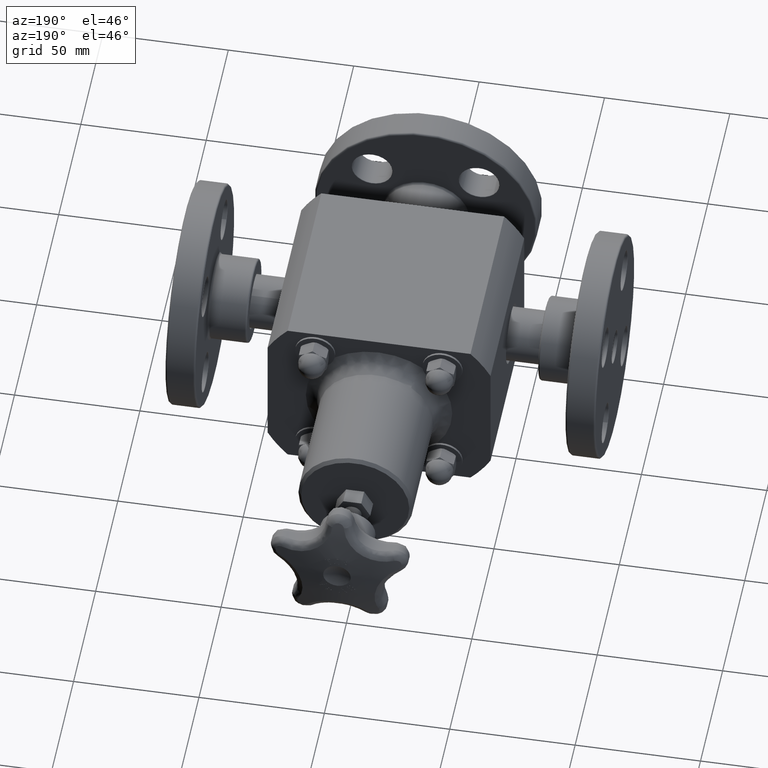
[diagram: clean part render]
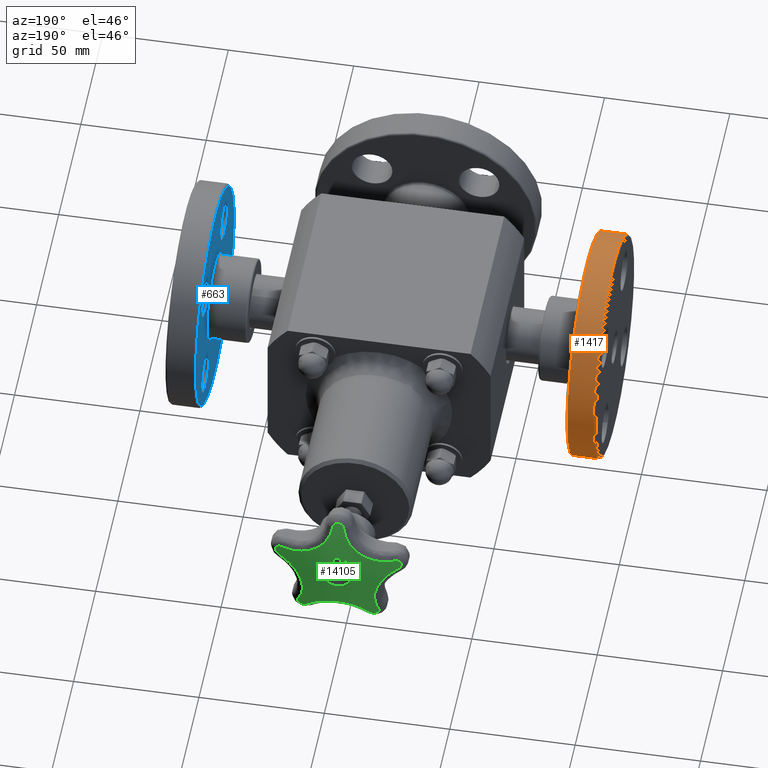
[diagram: same view with three faces highlighted in distinct colors, each labeled with its STEP entity id]
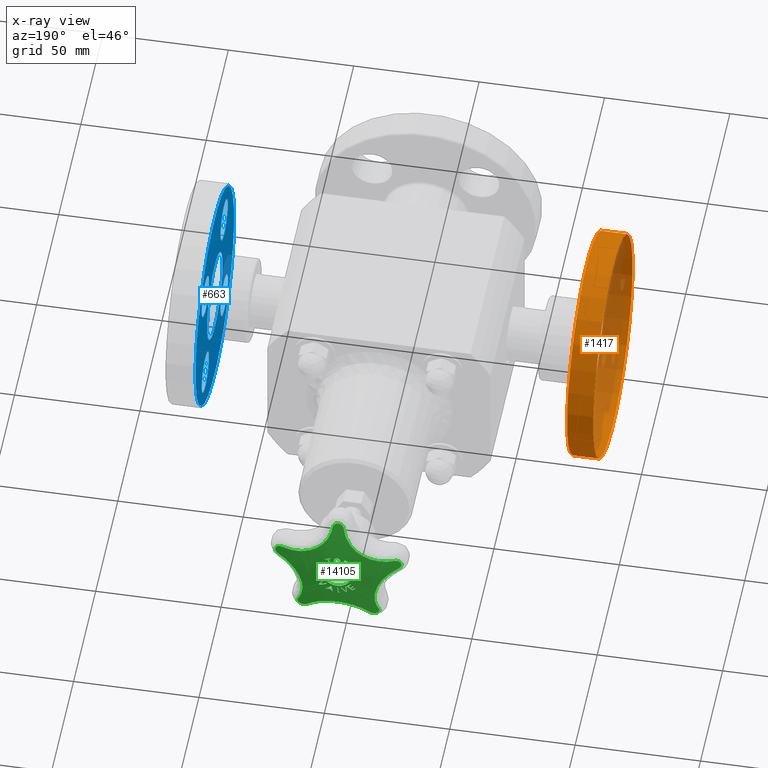
[diagram: x-ray of the same camera — body ghosted, the three highlighted faces saturated]
A machine part, auxiliary view with three faces highlighted in distinct colors.
The next image is the same camera in x-ray (body ghosted, the three faces saturated) — at least one of them is partly hidden behind the body in this view.
Their STEP definitions:

[orange] entity #1417 — the highlighted cylindrical surface (bore or boss wall) has radius 44.45 mm, axis along (1, -0, 0).
#1386=CARTESIAN_POINT('',(-3.345000000000006,-0.087436867076342,1.237436867076622));
#1387=VERTEX_POINT('',#1386);
#1388=CARTESIAN_POINT('',(-3.345000000000002,1.149999999999986,3.335837E-014));
#1389=DIRECTION('',(-1.000000000000000,2.120044E-015,-2.120044E-015));
#1390=DIRECTION('',(2.998195E-015,0.707106781186473,-0.707106781186622));
#1391=AXIS2_PLACEMENT_3D('',#1388,#1389,#1390);
#1392=CIRCLE('',#1391,1.750000000000000);
#1393=EDGE_CURVE('',#1387,#1387,#1392,.T.);
#1398=CARTESIAN_POINT('',(-3.140000000000002,1.149999999999986,3.377727E-014));
#1399=DIRECTION('',(1.0,-2.196697E-015,2.043391E-015));
#1400=DIRECTION('',(-2.998195E-015,-0.707106781186473,0.707106781186622));
#1401=AXIS2_PLACEMENT_3D('',#1398,#1399,#1400);
#1402=CYLINDRICAL_SURFACE('',#1401,1.750000000000000);
#1403=CARTESIAN_POINT('',(-2.935000000000007,-0.087436867076343,1.237436867076623));
#1404=VERTEX_POINT('',#1403);
#1405=CARTESIAN_POINT('',(-2.935000000000002,1.149999999999985,3.419616E-014));
#1406=DIRECTION('',(1.000000000000000,-2.120044E-015,2.120044E-015));
#1407=DIRECTION('',(2.998195E-015,0.707106781186473,-0.707106781186622));
#1408=AXIS2_PLACEMENT_3D('',#1405,#1406,#1407);
#1409=CIRCLE('',#1408,1.750000000000000);
#1410=EDGE_CURVE('',#1404,#1404,#1409,.T.);
#1411=ORIENTED_EDGE('',*,*,#1410,.F.);
#1412=EDGE_LOOP('',(#1411));
#1413=FACE_OUTER_BOUND('',#1412,.T.);
#1414=ORIENTED_EDGE('',*,*,#1393,.F.);
#1415=EDGE_LOOP('',(#1414));
#1416=FACE_BOUND('',#1415,.T.);
#1417=ADVANCED_FACE('',(#1413,#1416),#1402,.T.);

[blue] entity #663 — the highlighted planar face has unit normal (-1, 0, 0).
#585=CARTESIAN_POINT('',(2.905000000000005,0.661919544285954,-0.488080455714045));
#586=VERTEX_POINT('',#585);
#587=CARTESIAN_POINT('',(2.905000000000003,1.149999999999969,-3.057818E-014));
#588=DIRECTION('',(-1.0,-2.236787E-015,-2.236787E-015));
#589=DIRECTION('',(-3.163295E-015,0.707106781186547,0.707106781186548));
#590=AXIS2_PLACEMENT_3D('',#587,#588,#589);
#591=CIRCLE('',#590,0.690250000000000);
#592=EDGE_CURVE('',#586,#586,#591,.T.);
#600=CARTESIAN_POINT('',(2.905000000000007,0.297847940322531,-0.852152059677469));
#601=DIRECTION('',(-1.0,0.0,0.0));
#602=DIRECTION('',(0.0,0.707106781186548,-0.707106781186547));
#603=AXIS2_PLACEMENT_3D('',#600,#601,#602);
#604=PLANE('',#603);
#605=CARTESIAN_POINT('',(2.905000000000008,-0.066223663640893,-1.216223663640893));
#606=VERTEX_POINT('',#605);
#607=CARTESIAN_POINT('',(2.905000000000003,1.149999999999969,-3.057818E-014));
#608=DIRECTION('',(1.000000000000000,2.236787E-015,2.236787E-015));
#609=DIRECTION('',(-3.163295E-015,0.707106781186547,0.707106781186548));
#610=AXIS2_PLACEMENT_3D('',#607,#608,#609);
#611=CIRCLE('',#610,1.720000000000000);
#612=EDGE_CURVE('',#606,#606,#611,.T.);
#613=ORIENTED_EDGE('',*,*,#612,.F.);
#614=EDGE_LOOP('',(#613));
#615=FACE_OUTER_BOUND('',#614,.T.);
#616=CARTESIAN_POINT('',(2.905000000000002,2.219499006544623,-0.609879598773427));
#617=VERTEX_POINT('',#616);
#618=CARTESIAN_POINT('',(2.905000000000003,1.989689302658994,-0.839689302659055));
#619=DIRECTION('',(-1.0,-2.236787E-015,-2.236787E-015));
#620=DIRECTION('',(3.163295E-015,-0.707106781186547,-0.707106781186548));
#621=AXIS2_PLACEMENT_3D('',#618,#619,#620);
#622=CIRCLE('',#621,0.325000000000000);
#623=EDGE_CURVE('',#617,#617,#622,.T.);
#624=ORIENTED_EDGE('',*,*,#623,.F.);
#625=EDGE_LOOP('',(#624));
#626=FACE_BOUND('',#625,.T.);
#627=CARTESIAN_POINT('',(2.905000000000007,0.540120401226572,-1.069499006544684));
#628=VERTEX_POINT('',#627);
#629=CARTESIAN_POINT('',(2.905000000000007,0.310310697340944,-0.839689302659056));
#630=DIRECTION('',(-1.0,-7.093175E-017,7.093175E-017));
#631=DIRECTION('',(1.003126E-016,-0.707106781186548,0.707106781186547));
#632=AXIS2_PLACEMENT_3D('',#629,#630,#631);
#633=CIRCLE('',#632,0.325000000000000);
#634=EDGE_CURVE('',#628,#628,#633,.T.);
#635=ORIENTED_EDGE('',*,*,#634,.F.);
#636=EDGE_LOOP('',(#635));
#637=FACE_BOUND('',#636,.T.);
#638=CARTESIAN_POINT('',(2.905000000000004,0.080500993455315,0.609879598773366));
#639=VERTEX_POINT('',#638);
#640=CARTESIAN_POINT('',(2.905000000000003,0.310310697340943,0.839689302658994));
#641=DIRECTION('',(-1.0,-2.236787E-015,-2.236787E-015));
#642=DIRECTION('',(-3.163295E-015,0.707106781186547,0.707106781186548));
#643=AXIS2_PLACEMENT_3D('',#640,#641,#642);
#644=CIRCLE('',#643,0.325000000000000);
#645=EDGE_CURVE('',#639,#639,#644,.T.);
#646=ORIENTED_EDGE('',*,*,#645,.F.);
#647=EDGE_LOOP('',(#646));
#648=FACE_BOUND('',#647,.T.);
#649=CARTESIAN_POINT('',(2.904999999999999,1.759879598773366,1.069499006544623));
#650=VERTEX_POINT('',#649);
#651=CARTESIAN_POINT('',(2.904999999999999,1.989689302658993,0.839689302658995));
#652=DIRECTION('',(-1.0,-7.093175E-017,7.093175E-017));
#653=DIRECTION('',(-1.003126E-016,0.707106781186548,-0.707106781186547));
#654=AXIS2_PLACEMENT_3D('',#651,#652,#653);
#655=CIRCLE('',#654,0.325000000000000);
#656=EDGE_CURVE('',#650,#650,#655,.T.);
#657=ORIENTED_EDGE('',*,*,#656,.F.);
#658=EDGE_LOOP('',(#657));
#659=FACE_BOUND('',#658,.T.);
#660=ORIENTED_EDGE('',*,*,#592,.F.);
#661=EDGE_LOOP('',(#660));
#662=FACE_BOUND('',#661,.T.);
#663=ADVANCED_FACE('',(#615,#626,#637,#648,#659,#662),#604,.T.);

[green] entity #14105 — the highlighted spherical surface has radius 101.6 mm.
#10915=CARTESIAN_POINT('',(0.085862900185206,6.740578033837451,-0.334336098257463));
#10916=VERTEX_POINT('',#10915);
#10923=CARTESIAN_POINT('',(0.080862571524469,6.738070388788941,-0.364135061299997));
#10924=VERTEX_POINT('',#10923);
#10925=CARTESIAN_POINT('',(0.138077283113866,2.755500000000001,-0.023169658459773));
#10926=DIRECTION('',(0.986211736099962,8.119753E-016,-0.165488403154721));
#10927=DIRECTION('',(0.165488403154721,1.362512E-016,0.986211736099962));
#10928=AXIS2_PLACEMENT_3D('',#10925,#10926,#10927);
#10929=CIRCLE('',#10928,3.997548977913186);
#10930=EDGE_CURVE('',#10924,#10916,#10929,.T.);
#10948=CARTESIAN_POINT('',(0.066931145986270,6.738560100352849,-0.361597094393903));
#10949=VERTEX_POINT('',#10948);
#10950=CARTESIAN_POINT('',(-0.061608234058830,2.755500000000001,-0.338180345563004));
#10951=DIRECTION('',(-0.179225881333302,0.0,-0.983807950496590));
#10952=DIRECTION('',(0.0,-1.0,0.0));
#10953=AXIS2_PLACEMENT_3D('',#10950,#10951,#10952);
#10954=CIRCLE('',#10953,3.985202438944732);
#10955=EDGE_CURVE('',#10949,#10924,#10954,.T.);
#10973=CARTESIAN_POINT('',(0.086359266902225,6.747345606544359,-0.240230577846814));
#10974=VERTEX_POINT('',#10973);
#10975=CARTESIAN_POINT('',(0.121696449326064,2.755500000000001,-0.019480935927100));
#10976=DIRECTION('',(-0.987428598717144,-8.129772E-016,0.158065690254078));
#10977=DIRECTION('',(-0.158065690254078,-1.301398E-016,-0.987428598717144));
#10978=AXIS2_PLACEMENT_3D('',#10975,#10976,#10977);
#10979=CIRCLE('',#10978,3.998100857576862);
#10980=EDGE_CURVE('',#10974,#10949,#10979,.T.);
#10998=CARTESIAN_POINT('',(0.178491128782155,6.738560100243761,-0.321516958794137));
#10999=VERTEX_POINT('',#10998);
#11000=CARTESIAN_POINT('',(-0.081379549747353,2.755500000000001,-0.092237461550080));
#11001=DIRECTION('',(0.661592173204071,0.0,0.749863851879202));
#11002=DIRECTION('',(0.0,1.0,0.0));
#11003=AXIS2_PLACEMENT_3D('',#11000,#11001,#11002);
#11004=CIRCLE('',#11003,3.998108255108873);
#11005=EDGE_CURVE('',#10999,#10974,#11004,.T.);
#11041=CARTESIAN_POINT('',(0.169360113250162,6.738070388702395,-0.332340564889026));
#11042=VERTEX_POINT('',#11041);
#11043=CARTESIAN_POINT('',(0.262739148876331,2.755500000000001,-0.221652121134104));
#11044=DIRECTION('',(0.764340282334966,0.0,-0.644813099122609));
#11045=DIRECTION('',(0.0,-1.0,0.0));
#11046=AXIS2_PLACEMENT_3D('',#11043,#11044,#11045);
#11047=CIRCLE('',#11046,3.985202438627741);
#11048=EDGE_CURVE('',#11042,#10999,#11047,.T.);
#11066=CARTESIAN_POINT('',(0.146539084429399,6.740578033778149,-0.312536976105991));
#11067=VERTEX_POINT('',#11066);
#11068=CARTESIAN_POINT('',(-0.091762441742964,2.755500000000001,-0.105744133077217));
#11069=DIRECTION('',(-0.655409775395539,0.0,-0.755273477831686));
#11070=DIRECTION('',(0.0,-1.0,0.0));
#11071=AXIS2_PLACEMENT_3D('',#11068,#11069,#11070);
#11072=CIRCLE('',#11071,3.997548978137118);
#11073=EDGE_CURVE('',#11067,#11042,#11072,.T.);
#11091=CARTESIAN_POINT('',(0.116200988857741,2.755500000000001,-0.323436538421051));
#11092=DIRECTION('',(0.338111065893150,0.0,-0.941106214579735));
#11093=DIRECTION('',(0.0,-1.0,0.0));
#11094=AXIS2_PLACEMENT_3D('',#11091,#11092,#11093);
#11095=CIRCLE('',#11094,3.985208418113498);
#11096=EDGE_CURVE('',#10916,#11067,#11095,.T.);
#11126=CARTESIAN_POINT('',(0.037834369669128,6.746204436490726,0.269901206082852));
#11127=VERTEX_POINT('',#11126);
#11134=CARTESIAN_POINT('',(-0.000813251585515,6.747463335806677,0.253432563411025));
#11135=VERTEX_POINT('',#11134);
#11136=CARTESIAN_POINT('',(-0.000813251585515,6.747463335806679,0.253432563411025));
#11137=CARTESIAN_POINT('',(0.004822604549688,6.747463267161418,0.253451729844247));
#11138=CARTESIAN_POINT('',(0.010434056143413,6.747408968571552,0.254137147028970));
#11139=CARTESIAN_POINT('',(0.019829419967583,6.747191776701516,0.256945437338924));
#11140=CARTESIAN_POINT('',(0.023603879105446,6.747063271092423,0.258616838560288));
#11141=CARTESIAN_POINT('',(0.031162797321002,6.746707503911848,0.263275608997045));
#11142=CARTESIAN_POINT('',(0.034718544485051,6.746475224151670,0.266334166676060));
#11143=CARTESIAN_POINT('',(0.037834369669128,6.746204436490726,0.269901206082852));
#11144=B_SPLINE_CURVE_WITH_KNOTS('',3,(#11136,#11137,#11138,#11139,#11140,#11141,#11142,#11143),.UNSPECIFIED.,.F.,.U.,(4,2,2,4),(0.0,0.042945472093289,0.074729953679080,0.111130521126663),.UNSPECIFIED.);
#11145=EDGE_CURVE('',#11135,#11127,#11144,.T.);
#11178=CARTESIAN_POINT('',(0.051972176469604,6.742648590963245,0.316140801626154));
#11179=VERTEX_POINT('',#11178);
#11186=CARTESIAN_POINT('',(0.037834369669128,6.746204436490726,0.269901206082852));
#11187=CARTESIAN_POINT('',(0.041442739555286,6.745886429832900,0.274097371770596));
#11188=CARTESIAN_POINT('',(0.044216393332112,6.745526143654533,0.278867364485765));
#11189=CARTESIAN_POINT('',(0.051175872144368,6.744247534047899,0.295695352673442));
#11190=CARTESIAN_POINT('',(0.052000310715347,6.743304176149835,0.307867975918427));
#11191=CARTESIAN_POINT('',(0.051972176469604,6.742648590963245,0.316140801626154));
#11192=B_SPLINE_CURVE_WITH_KNOTS('',3,(#11186,#11187,#11188,#11189,#11190,#11191),.UNSPECIFIED.,.F.,.U.,(4,2,4),(0.0,0.042240697270331,0.139117363804144),.UNSPECIFIED.);
#11193=EDGE_CURVE('',#11127,#11179,#11192,.T.);
#11219=CARTESIAN_POINT('',(0.037422621985942,6.738875481075144,0.362380082417698));
#11220=VERTEX_POINT('',#11219);
#11227=CARTESIAN_POINT('',(0.051972176469604,6.742648590963245,0.316140801626154));
#11228=CARTESIAN_POINT('',(0.051955724861652,6.742265235014527,0.320978368143260));
#11229=CARTESIAN_POINT('',(0.051649887753161,6.741873160763518,0.325860197870603));
#11230=CARTESIAN_POINT('',(0.050134657362978,6.741046460787356,0.336059631335726));
#11231=CARTESIAN_POINT('',(0.048942330808369,6.740679768741241,0.340537076610656));
#11232=CARTESIAN_POINT('',(0.045132529339027,6.739814489793274,0.351068251626343));
#11233=CARTESIAN_POINT('',(0.041865078415880,6.739314249290123,0.357098260899482));
#11234=CARTESIAN_POINT('',(0.037422621985942,6.738875481075144,0.362380082417698));
#11235=B_SPLINE_CURVE_WITH_KNOTS('',3,(#11227,#11228,#11229,#11230,#11231,#11232,#11233,#11234),.UNSPECIFIED.,.F.,.U.,(4,2,2,4),(0.0,0.036978033263811,0.078812994269673,0.145814753845857),.UNSPECIFIED.);
#11236=EDGE_CURVE('',#11179,#11220,#11235,.T.);
#11264=CARTESIAN_POINT('',(-0.001238542349027,6.737552846207735,0.378488567887761));
#11265=VERTEX_POINT('',#11264);
#11272=CARTESIAN_POINT('',(0.037422621985942,6.738875481075144,0.362380082417698));
#11273=CARTESIAN_POINT('',(0.034954443929445,6.738644692501275,0.365171856276012));
#11274=CARTESIAN_POINT('',(0.032197988751056,6.738440415363390,0.367645041378230));
#11275=CARTESIAN_POINT('',(0.025433171661511,6.738054380883790,0.372335971569166));
#11276=CARTESIAN_POINT('',(0.021382576080445,6.737892027163674,0.374321631798851));
#11277=CARTESIAN_POINT('',(0.014161922593867,6.737697132621298,0.376716303028089));
#11278=CARTESIAN_POINT('',(0.011126297743761,6.737640822220747,0.377412789087581));
#11279=CARTESIAN_POINT('',(0.004967186895544,6.737568654773592,0.378304358121796));
#11280=CARTESIAN_POINT('',(0.001864839243264,6.737552808314180,0.378499121875411));
#11281=CARTESIAN_POINT('',(-0.001238542349027,6.737552846207737,0.378488567887761));
#11282=B_SPLINE_CURVE_WITH_KNOTS('',3,(#11272,#11273,#11274,#11275,#11276,#11277,#11278,#11279,#11280,#11281),.UNSPECIFIED.,.F.,.U.,(4,2,2,2,4),(0.0,0.028449418287417,0.062797366334246,0.086669104210055,0.110412733579470),.UNSPECIFIED.);
#11283=EDGE_CURVE('',#11220,#11265,#11282,.T.);
#11469=CARTESIAN_POINT('',(-0.039886494311884,6.738875481072100,0.362117169387378));
#11470=VERTEX_POINT('',#11469);
#11477=CARTESIAN_POINT('',(-0.001238542349027,6.737552846207735,0.378488567887761));
#11478=CARTESIAN_POINT('',(-0.006745334190300,6.737552913447912,0.378469840376703));
#11479=CARTESIAN_POINT('',(-0.012222719771295,6.737603190919958,0.377803010782852));
#11480=CARTESIAN_POINT('',(-0.022169110236768,6.737836259202796,0.374873454632416));
#11481=CARTESIAN_POINT('',(-0.025880772573743,6.737983982792516,0.373045650941542));
#11482=CARTESIAN_POINT('',(-0.032976239086439,6.738326456239562,0.368822005397032));
#11483=CARTESIAN_POINT('',(-0.036677483482779,6.738576120274296,0.365763676003977));
#11484=CARTESIAN_POINT('',(-0.039886494311884,6.738875481072101,0.362117169387378));
#11485=B_SPLINE_CURVE_WITH_KNOTS('',3,(#11477,#11478,#11479,#11480,#11481,#11482,#11483,#11484),.UNSPECIFIED.,.F.,.U.,(4,2,2,4),(0.0,0.041961996486355,0.079020325656231,0.132098515306939),.UNSPECIFIED.);
#11486=EDGE_CURVE('',#11265,#11470,#11485,.T.);
#11512=CARTESIAN_POINT('',(-0.054121214575590,6.742648590959070,0.315779998964418));
#11513=VERTEX_POINT('',#11512);
#11520=CARTESIAN_POINT('',(-0.039886494311884,6.738875481072101,0.362117169387378));
#11521=CARTESIAN_POINT('',(-0.043384531614645,6.739215540252462,0.357991135129825));
#11522=CARTESIAN_POINT('',(-0.046110522559893,6.739601304155914,0.353327026506887));
#11523=CARTESIAN_POINT('',(-0.049655140330855,6.740287322165352,0.344989572698872));
#11524=CARTESIAN_POINT('',(-0.051408401706373,6.740680648419754,0.340203251638014));
#11525=CARTESIAN_POINT('',(-0.053714336300570,6.741694761028935,0.327721858865082));
#11526=CARTESIAN_POINT('',(-0.054141415064123,6.742177878462817,0.321719917253610));
#11527=CARTESIAN_POINT('',(-0.054121214575590,6.742648590959071,0.315779998964418));
#11528=B_SPLINE_CURVE_WITH_KNOTS('',3,(#11520,#11521,#11522,#11523,#11524,#11525,#11526,#11527),.UNSPECIFIED.,.F.,.U.,(4,2,2,4),(0.0,0.041300163745689,0.069239721804254,0.093823977580811),.UNSPECIFIED.);
#11529=EDGE_CURVE('',#11470,#11513,#11528,.T.);
#11555=CARTESIAN_POINT('',(-0.039571990800143,6.746205379604828,0.269637962344317));
#11556=VERTEX_POINT('',#11555);
#11563=CARTESIAN_POINT('',(-0.054121214575590,6.742648590959070,0.315779998964418));
#11564=CARTESIAN_POINT('',(-0.054104973183968,6.743027048439478,0.311004246190808));
#11565=CARTESIAN_POINT('',(-0.053791585087134,6.743402200783878,0.306211457940531));
#11566=CARTESIAN_POINT('',(-0.052375519715099,6.744143410979321,0.296655576028873));
#11567=CARTESIAN_POINT('',(-0.051258684496634,6.744507467278868,0.291916990166382));
#11568=CARTESIAN_POINT('',(-0.047377403862627,6.745352193214817,0.280860112488070));
#11569=CARTESIAN_POINT('',(-0.044132654634135,6.745811607413359,0.274796561836271));
#11570=CARTESIAN_POINT('',(-0.039571990800143,6.746205379604830,0.269637962344317));
#11571=B_SPLINE_CURVE_WITH_KNOTS('',3,(#11563,#11564,#11565,#11566,#11567,#11568,#11569,#11570),.UNSPECIFIED.,.F.,.U.,(4,2,2,4),(0.0,0.036505533163791,0.073822024429602,0.126837533468264),.UNSPECIFIED.);
#11572=EDGE_CURVE('',#11513,#11556,#11571,.T.);
#11599=CARTESIAN_POINT('',(-0.039571990800143,6.746205379604827,0.269637962344317));
#11600=CARTESIAN_POINT('',(-0.036994618978139,6.746426649193219,0.266741374653484));
#11601=CARTESIAN_POINT('',(-0.034125944551204,6.746624226597592,0.264155087526020));
#11602=CARTESIAN_POINT('',(-0.028127958870899,6.746941902899274,0.260022999604723));
#11603=CARTESIAN_POINT('',(-0.024119800176992,6.747119835051822,0.257727462092389));
#11604=CARTESIAN_POINT('',(-0.015614631027449,6.747330482346447,0.255058899401250));
#11605=CARTESIAN_POINT('',(-0.012615830697538,6.747382732516451,0.254406267976287));
#11606=CARTESIAN_POINT('',(-0.006666959610793,6.747448427235688,0.253597873925736));
#11607=CARTESIAN_POINT('',(-0.003741704705229,6.747463371475512,0.253422604320576));
#11608=CARTESIAN_POINT('',(-0.000813251586151,6.747463335806678,0.253432563411023));
#11609=B_SPLINE_CURVE_WITH_KNOTS('',3,(#11599,#11600,#11601,#11602,#11603,#11604,#11605,#11606,#11607,#11608),.UNSPECIFIED.,.F.,.U.,(4,2,2,2,4),(0.0,0.029592715149351,0.055552496815722,0.069221283901438,0.082236559754027),.UNSPECIFIED.);
#11610=EDGE_CURVE('',#11556,#11135,#11609,.T.);
#11884=CARTESIAN_POINT('',(-0.247118300170069,6.742930202010450,-0.198325313099392));
#11885=VERTEX_POINT('',#11884);
#11892=CARTESIAN_POINT('',(-0.207827658530658,6.743059962457522,-0.237008882018032));
#11893=VERTEX_POINT('',#11892);
#11894=CARTESIAN_POINT('',(-0.220785948703936,2.755500000000000,-0.224250808083116));
#11895=DIRECTION('',(0.701580297701931,0.0,0.712590405405847));
#11896=DIRECTION('',(0.0,1.0,0.0));
#11897=AXIS2_PLACEMENT_3D('',#11894,#11895,#11896);
#11898=CIRCLE('',#11897,3.987601426914302);
#11899=EDGE_CURVE('',#11893,#11885,#11898,.T.);
#11917=CARTESIAN_POINT('',(-0.176580613442938,6.746324840990900,-0.205271467783727));
#11918=VERTEX_POINT('',#11917);
#11919=CARTESIAN_POINT('',(0.012958290173280,2.755500000000001,-0.012758073934916));
#11920=DIRECTION('',(-0.712590405405847,0.0,0.701580297701931));
#11921=DIRECTION('',(0.0,1.0,0.0));
#11922=AXIS2_PLACEMENT_3D('',#11919,#11920,#11921);
#11923=CIRCLE('',#11922,3.999958664069575);
#11924=EDGE_CURVE('',#11918,#11893,#11923,.T.);
#11942=CARTESIAN_POINT('',(-0.218712377317299,6.746156275729470,-0.163790674304833));
#11943=VERTEX_POINT('',#11942);
#11944=CARTESIAN_POINT('',(-0.189538903616217,2.755500000000001,-0.192513393848812));
#11945=DIRECTION('',(-0.701580297701931,0.0,-0.712590405405848));
#11946=DIRECTION('',(0.0,-1.0,0.0));
#11947=AXIS2_PLACEMENT_3D('',#11944,#11945,#11946);
#11948=CIRCLE('',#11947,3.990866271526118);
#11949=EDGE_CURVE('',#11943,#11918,#11948,.T.);
#11967=CARTESIAN_POINT('',(-0.208751528883222,6.747092069880931,-0.153673507321845));
#11968=VERTEX_POINT('',#11967);
#11969=CARTESIAN_POINT('',(-0.029173473701080,2.755500000000001,0.028722719543979));
#11970=DIRECTION('',(-0.712590405405848,0.0,0.701580297701931));
#11971=DIRECTION('',(0.0,1.0,0.0));
#11972=AXIS2_PLACEMENT_3D('',#11969,#11970,#11971);
#11973=CIRCLE('',#11972,3.999790483739644);
#11974=EDGE_CURVE('',#11968,#11943,#11973,.T.);
#11992=CARTESIAN_POINT('',(-0.155255276069067,6.747156082813491,-0.206343199041757));
#11993=VERTEX_POINT('',#11992);
#11994=CARTESIAN_POINT('',(-0.179578055182140,2.755500000000001,-0.182396226865824));
#11995=DIRECTION('',(0.701580297701931,0.0,0.712590405405847));
#11996=DIRECTION('',(0.0,1.0,0.0));
#11997=AXIS2_PLACEMENT_3D('',#11994,#11995,#11996);
#11998=CIRCLE('',#11997,3.991802016448476);
#11999=EDGE_CURVE('',#11993,#11968,#11998,.T.);
#12017=CARTESIAN_POINT('',(-0.239444912833796,6.737646073155509,-0.291854048747284));
#12018=VERTEX_POINT('',#12017);
#12019=CARTESIAN_POINT('',(0.024322779113075,2.755500000000001,-0.023946972175933));
#12020=DIRECTION('',(0.712590405405848,0.0,-0.701580297701931));
#12021=DIRECTION('',(0.0,-1.0,0.0));
#12022=AXIS2_PLACEMENT_3D('',#12019,#12020,#12021);
#12023=CIRCLE('',#12022,3.999854365466301);
#12024=EDGE_CURVE('',#12018,#11993,#12023,.T.);
#12042=CARTESIAN_POINT('',(-0.292941165647951,6.737581907347241,-0.239184357027373));
#12043=VERTEX_POINT('',#12042);
#12044=CARTESIAN_POINT('',(-0.263767691946869,2.755500000000000,-0.267907076571351));
#12045=DIRECTION('',(-0.701580297701931,0.0,-0.712590405405847));
#12046=DIRECTION('',(0.0,-1.0,0.0));
#12047=AXIS2_PLACEMENT_3D('',#12044,#12045,#12046);
#12048=CIRCLE('',#12047,3.982292355290859);
#12049=EDGE_CURVE('',#12043,#12018,#12048,.T.);
#12067=CARTESIAN_POINT('',(-0.282980317213874,6.738896837187417,-0.229067190044385));
#12068=VERTEX_POINT('',#12067);
#12069=CARTESIAN_POINT('',(-0.029173473701080,2.755500000000001,0.028722719543979));
#12070=DIRECTION('',(-0.712590405405848,0.0,0.701580297701931));
#12071=DIRECTION('',(0.0,1.0,0.0));
#12072=AXIS2_PLACEMENT_3D('',#12069,#12070,#12071);
#12073=CIRCLE('',#12072,3.999790483739644);
#12074=EDGE_CURVE('',#12068,#12043,#12073,.T.);
#12092=CARTESIAN_POINT('',(-0.240848553339514,6.739065709633239,-0.270547983523279));
#12093=VERTEX_POINT('',#12092);
#12094=CARTESIAN_POINT('',(-0.253806843512793,2.755500000000000,-0.257789909588364));
#12095=DIRECTION('',(0.701580297701931,0.0,0.712590405405847));
#12096=DIRECTION('',(0.0,1.0,0.0));
#12097=AXIS2_PLACEMENT_3D('',#12094,#12095,#12096);
#12098=CIRCLE('',#12097,3.983607215665281);
#12099=EDGE_CURVE('',#12093,#12068,#12098,.T.);
#12117=CARTESIAN_POINT('',(-0.217788506964734,6.741914037971874,-0.247126049001019));
#12118=VERTEX_POINT('',#12117);
#12119=CARTESIAN_POINT('',(0.012958290173280,2.755500000000001,-0.012758073934915));
#12120=DIRECTION('',(-0.712590405405848,0.0,0.701580297701930));
#12121=DIRECTION('',(0.0,1.0,0.0));
#12122=AXIS2_PLACEMENT_3D('',#12119,#12120,#12121);
#12123=CIRCLE('',#12122,3.999958664069575);
#12124=EDGE_CURVE('',#12118,#12093,#12123,.T.);
#12142=CARTESIAN_POINT('',(-0.257079148604146,6.741784240222978,-0.208442480082380));
#12143=VERTEX_POINT('',#12142);
#12144=CARTESIAN_POINT('',(-0.230746797138013,2.755500000000000,-0.234367975066104));
#12145=DIRECTION('',(-0.701580297701931,0.0,-0.712590405405848));
#12146=DIRECTION('',(0.0,-1.0,0.0));
#12147=AXIS2_PLACEMENT_3D('',#12144,#12145,#12146);
#12148=CIRCLE('',#12147,3.986455514347798);
#12149=EDGE_CURVE('',#12143,#12118,#12148,.T.);
#12167=CARTESIAN_POINT('',(-0.026332351466132,2.755500000000001,0.025925494983724));
#12168=DIRECTION('',(-0.712590405405848,0.0,0.701580297701931));
#12169=DIRECTION('',(0.0,1.0,0.0));
#12170=AXIS2_PLACEMENT_3D('',#12167,#12168,#12169);
#12171=CIRCLE('',#12170,3.999829305854953);
#12172=EDGE_CURVE('',#11885,#12143,#12171,.T.);
#12194=CARTESIAN_POINT('',(0.104679989358759,6.737501420719625,0.364289425065761));
#12195=VERTEX_POINT('',#12194);
#12202=CARTESIAN_POINT('',(0.193260657033250,6.737499064924953,0.326088585172621));
#12203=VERTEX_POINT('',#12202);
#12204=CARTESIAN_POINT('',(0.148881029224557,2.755500000000001,0.345227513574776));
#12205=DIRECTION('',(0.395999965100261,0.0,0.918250525532435));
#12206=DIRECTION('',(0.0,1.0,0.0));
#12207=AXIS2_PLACEMENT_3D('',#12204,#12205,#12206);
#12208=CIRCLE('',#12207,3.982292355290859);
#12209=EDGE_CURVE('',#12203,#12195,#12208,.T.);
#12234=CARTESIAN_POINT('',(0.099057688326099,6.738816377129187,0.351252350992701));
#12235=VERTEX_POINT('',#12234);
#12242=CARTESIAN_POINT('',(-0.044201039865796,2.755500000000001,0.019061911490985));
#12243=DIRECTION('',(-0.918250525532435,-7.560210E-016,0.395999965100260));
#12244=DIRECTION('',(-0.395999965100260,-3.260377E-016,-0.918250525532435));
#12245=AXIS2_PLACEMENT_3D('',#12242,#12243,#12244);
#12246=CIRCLE('',#12245,3.999710353463748);
#12247=EDGE_CURVE('',#12195,#12235,#12246,.T.);
#12267=CARTESIAN_POINT('',(0.136025829875736,6.739099428197435,0.335309661763104));
#12268=VERTEX_POINT('',#12267);
#12275=CARTESIAN_POINT('',(0.143258728191898,2.755500000000001,0.332190439501715));
#12276=DIRECTION('',(-0.395999965100261,0.0,-0.918250525532434));
#12277=DIRECTION('',(0.0,-1.0,0.0));
#12278=AXIS2_PLACEMENT_3D('',#12275,#12276,#12277);
#12279=CIRCLE('',#12278,3.983607215665281);
#12280=EDGE_CURVE('',#12235,#12268,#12279,.T.);
#12300=CARTESIAN_POINT('',(0.094128134509066,6.747294244967613,0.238156671410436));
#12301=VERTEX_POINT('',#12300);
#12308=CARTESIAN_POINT('',(-0.007232898316160,2.755500000000001,0.003119222261388));
#12309=DIRECTION('',(-0.918250525532435,-7.560210E-016,0.395999965100261));
#12310=DIRECTION('',(-0.395999965100261,-3.260377E-016,-0.918250525532435));
#12311=AXIS2_PLACEMENT_3D('',#12308,#12309,#12310);
#12312=CIRCLE('',#12311,3.999992244446786);
#12313=EDGE_CURVE('',#12268,#12301,#12312,.T.);
#12333=CARTESIAN_POINT('',(0.108772519084284,6.747293856457106,0.231841209976490));
#12334=VERTEX_POINT('',#12333);
#12341=CARTESIAN_POINT('',(0.101361032825228,2.755500000000001,0.235037449149048));
#12342=DIRECTION('',(-0.395999965100260,0.0,-0.918250525532435));
#12343=DIRECTION('',(0.0,-1.0,0.0));
#12344=AXIS2_PLACEMENT_3D('',#12341,#12342,#12343);
#12345=CIRCLE('',#12344,3.991802016448476);
#12346=EDGE_CURVE('',#12301,#12334,#12345,.T.);
#12366=CARTESIAN_POINT('',(0.150670214450954,6.739099038887710,0.328994200329157));
#12367=VERTEX_POINT('',#12366);
#12374=CARTESIAN_POINT('',(0.007411486259058,2.755500000000001,-0.003196239172558));
#12375=DIRECTION('',(0.918250525532434,7.560210E-016,-0.395999965100261));
#12376=DIRECTION('',(0.395999965100261,3.260377E-016,0.918250525532434));
#12377=AXIS2_PLACEMENT_3D('',#12374,#12375,#12376);
#12378=CIRCLE('',#12377,3.999991856732535);
#12379=EDGE_CURVE('',#12334,#12367,#12378,.T.);
#12399=CARTESIAN_POINT('',(0.187638356000590,6.738814022112201,0.313051511099561));
#12400=VERTEX_POINT('',#12399);
#12407=CARTESIAN_POINT('',(0.143258728191897,2.755500000000001,0.332190439501716));
#12408=DIRECTION('',(-0.395999965100261,0.0,-0.918250525532435));
#12409=DIRECTION('',(0.0,-1.0,0.0));
#12410=AXIS2_PLACEMENT_3D('',#12407,#12408,#12409);
#12411=CIRCLE('',#12410,3.983607215665281);
#12412=EDGE_CURVE('',#12367,#12400,#12411,.T.);
#12431=CARTESIAN_POINT('',(0.044379627808695,2.755500000000001,-0.019138928402155));
#12432=DIRECTION('',(0.918250525532435,7.560210E-016,-0.395999965100259));
#12433=DIRECTION('',(0.395999965100259,3.260377E-016,0.918250525532435));
#12434=AXIS2_PLACEMENT_3D('',#12431,#12432,#12433);
#12435=CIRCLE('',#12434,3.999708008099489);
#12436=EDGE_CURVE('',#12400,#12203,#12435,.T.);
#12535=CARTESIAN_POINT('',(-0.132776476717601,6.747152316888536,-0.221545002897484));
#12536=VERTEX_POINT('',#12535);
#12543=CARTESIAN_POINT('',(-0.141106922486275,6.739658741024818,-0.326447488490870));
#12544=VERTEX_POINT('',#12543);
#12545=CARTESIAN_POINT('',(-0.114461481346887,2.755500000000001,0.009089538322840));
#12546=DIRECTION('',(0.996861755361221,8.207438E-016,-0.079162116559279));
#12547=DIRECTION('',(0.079162116559279,6.517635E-017,0.996861755361221));
#12548=AXIS2_PLACEMENT_3D('',#12545,#12546,#12547);
#12549=CIRCLE('',#12548,3.998351654067081);
#12550=EDGE_CURVE('',#12544,#12536,#12549,.T.);
#12568=CARTESIAN_POINT('',(-0.071391562909484,6.747171847508764,-0.247909472492114));
#12569=VERTEX_POINT('',#12568);
#12570=CARTESIAN_POINT('',(0.083150511259559,2.755500000000001,-0.073809704991097));
#12571=DIRECTION('',(-0.747864056465855,0.0,0.663851905959784));
#12572=DIRECTION('',(0.0,1.0,0.0));
#12573=AXIS2_PLACEMENT_3D('',#12570,#12571,#12572);
#12574=CIRCLE('',#12573,3.998454466406539);
#12575=EDGE_CURVE('',#12569,#12544,#12574,.T.);
#12593=CARTESIAN_POINT('',(-0.055754940032599,6.746998131883169,-0.254625312636306));
#12594=VERTEX_POINT('',#12593);
#12595=CARTESIAN_POINT('',(-0.101011795140335,2.755500000000001,-0.235187752062933));
#12596=DIRECTION('',(0.394635554071923,0.0,0.918837732933485));
#12597=DIRECTION('',(0.0,1.0,0.0));
#12598=AXIS2_PLACEMENT_3D('',#12595,#12596,#12597);
#12599=CIRCLE('',#12598,3.991802016448476);
#12600=EDGE_CURVE('',#12594,#12569,#12599,.T.);
#12618=CARTESIAN_POINT('',(-0.140907158403205,6.737784076964299,-0.348652696916783));
#12619=VERTEX_POINT('',#12618);
#12620=CARTESIAN_POINT('',(0.096057099062328,2.755500000000001,-0.086990350077204));
#12621=DIRECTION('',(0.741222642945153,0.0,-0.671259259590065));
#12622=DIRECTION('',(0.0,-1.0,0.0));
#12623=AXIS2_PLACEMENT_3D('',#12620,#12621,#12622);
#12624=CIRCLE('',#12623,3.997900162924680);
#12625=EDGE_CURVE('',#12619,#12594,#12624,.T.);
#12643=CARTESIAN_POINT('',(-0.156722485541540,6.737781975401069,-0.341860104313800));
#12644=VERTEX_POINT('',#12643);
#12645=CARTESIAN_POINT('',(-0.148368062214241,2.755500000000001,-0.345448281377657));
#12646=DIRECTION('',(-0.394635554071924,0.0,-0.918837732933484));
#12647=DIRECTION('',(0.0,-1.0,0.0));
#12648=AXIS2_PLACEMENT_3D('',#12645,#12646,#12647);
#12649=CIRCLE('',#12648,3.982292355290859);
#12650=EDGE_CURVE('',#12644,#12619,#12649,.T.);
#12668=CARTESIAN_POINT('',(-0.147698282548686,6.746978628851239,-0.215136172588455));
#12669=VERTEX_POINT('',#12668);
#12670=CARTESIAN_POINT('',(-0.131710197155651,2.755500000000001,0.009379282501568));
#12671=DIRECTION('',(-0.997474063033574,-8.212479E-016,0.071031637847470));
#12672=DIRECTION('',(-0.071031637847470,-5.848231E-017,-0.997474063033574));
#12673=AXIS2_PLACEMENT_3D('',#12670,#12671,#12672);
#12674=CIRCLE('',#12673,3.997819962557716);
#12675=EDGE_CURVE('',#12669,#12644,#12674,.T.);
#12693=CARTESIAN_POINT('',(-0.101011795140335,2.755500000000001,-0.235187752062933));
#12694=DIRECTION('',(0.394635554071923,0.0,0.918837732933485));
#12695=DIRECTION('',(0.0,1.0,0.0));
#12696=AXIS2_PLACEMENT_3D('',#12693,#12694,#12695);
#12697=CIRCLE('',#12696,3.991802016448476);
#12698=EDGE_CURVE('',#12536,#12669,#12697,.T.);
#12720=CARTESIAN_POINT('',(-0.069865805707582,6.747162659387479,0.248491414025747));
#12721=VERTEX_POINT('',#12720);
#12728=CARTESIAN_POINT('',(-0.084532147718002,6.747264063873195,0.242227113207305));
#12729=VERTEX_POINT('',#12728);
#12730=CARTESIAN_POINT('',(-0.100539922146021,2.755500000000001,0.235389858602194));
#12731=DIRECTION('',(0.392792028171763,0.0,-0.919627328108899));
#12732=DIRECTION('',(0.0,-1.0,0.0));
#12733=AXIS2_PLACEMENT_3D('',#12730,#12731,#12732);
#12734=CIRCLE('',#12733,3.991802016448476);
#12735=EDGE_CURVE('',#12729,#12721,#12734,.T.);
#12760=CARTESIAN_POINT('',(-0.117000849670734,6.737652665435396,0.358846694762692));
#12761=VERTEX_POINT('',#12760);
#12768=CARTESIAN_POINT('',(0.030674116438440,2.755500000000001,0.013101555423553));
#12769=DIRECTION('',(0.919627328108900,7.571545E-016,0.392792028171762));
#12770=DIRECTION('',(-0.392792028171762,-3.233965E-016,0.919627328108900));
#12771=AXIS2_PLACEMENT_3D('',#12768,#12769,#12770);
#12772=CIRCLE('',#12771,3.999860928560668);
#12773=EDGE_CURVE('',#12721,#12761,#12772,.T.);
#12793=CARTESIAN_POINT('',(-0.144723813227016,6.737791062296547,0.347005638337589));
#12794=VERTEX_POINT('',#12793);
#12801=CARTESIAN_POINT('',(-0.147674966109172,2.755500000000001,0.345745139339139));
#12802=DIRECTION('',(-0.392792028171761,0.0,0.919627328108900));
#12803=DIRECTION('',(0.0,1.0,0.0));
#12804=AXIS2_PLACEMENT_3D('',#12801,#12802,#12803);
#12805=CIRCLE('',#12804,3.982292355290859);
#12806=EDGE_CURVE('',#12761,#12794,#12805,.T.);
#12832=CARTESIAN_POINT('',(-0.170668187046199,6.738392332671245,0.327781995050034));
#12833=VERTEX_POINT('',#12832);
#12840=CARTESIAN_POINT('',(-0.144723813227016,6.737791062296547,0.347005638337589));
#12841=CARTESIAN_POINT('',(-0.150088261328742,6.737795762969326,0.344714370575645));
#12842=CARTESIAN_POINT('',(-0.155816045050097,6.737823287565298,0.341843284165148));
#12843=CARTESIAN_POINT('',(-0.163386369744127,6.737985173854674,0.336346581494136));
#12844=CARTESIAN_POINT('',(-0.167427829443186,6.738105667536207,0.332952450875756));
#12845=CARTESIAN_POINT('',(-0.170668187046198,6.738392332671245,0.327781995050034));
#12846=B_SPLINE_CURVE_WITH_KNOTS('',3,(#12840,#12841,#12842,#12843,#12844,#12845),.UNSPECIFIED.,.F.,.U.,(4,2,4),(0.0,0.044449644500484,0.071079555324561),.UNSPECIFIED.);
#12847=EDGE_CURVE('',#12794,#12833,#12846,.T.);
#13019=CARTESIAN_POINT('',(-0.172546135424806,6.740815390487376,0.295785512651345));
#13020=VERTEX_POINT('',#13019);
#13027=CARTESIAN_POINT('',(-0.170668187046198,6.738392332671245,0.327781995050034));
#13028=CARTESIAN_POINT('',(-0.172986087574704,6.738591167831978,0.324159065981218));
#13029=CARTESIAN_POINT('',(-0.174567491806919,6.738838750576292,0.320245416315975));
#13030=CARTESIAN_POINT('',(-0.176129629330605,6.739442814318249,0.311764074180628));
#13031=CARTESIAN_POINT('',(-0.175887094211248,6.739718772794618,0.308335133779386));
#13032=CARTESIAN_POINT('',(-0.175001277294212,6.740211349698702,0.302427671544135));
#13033=CARTESIAN_POINT('',(-0.173928522803416,6.740515328212926,0.299022037632057));
#13034=CARTESIAN_POINT('',(-0.172546135424806,6.740815390487376,0.295785512651345));
#13035=B_SPLINE_CURVE_WITH_KNOTS('',3,(#13027,#13028,#13029,#13030,#13031,#13032,#13033,#13034),.UNSPECIFIED.,.F.,.U.,(4,2,2,4),(0.0,0.032808337471925,0.065876100718766,0.113361042324126),.UNSPECIFIED.);
#13036=EDGE_CURVE('',#12833,#13020,#13035,.T.);
#13064=CARTESIAN_POINT('',(-0.152421846635913,6.743095568897901,0.275407261294860));
#13065=VERTEX_POINT('',#13064);
#13072=CARTESIAN_POINT('',(-0.172546135424806,6.740815390487375,0.295785512651345));
#13073=CARTESIAN_POINT('',(-0.171321928932310,6.741081117873359,0.292919329875214));
#13074=CARTESIAN_POINT('',(-0.169804261392698,6.741343863950837,0.290215418914446));
#13075=CARTESIAN_POINT('',(-0.165910493783787,6.741891779064993,0.284897251377497));
#13076=CARTESIAN_POINT('',(-0.163657217073232,6.742148699667300,0.282590003201545));
#13077=CARTESIAN_POINT('',(-0.158684575838196,6.742639217410808,0.278482510744070));
#13078=CARTESIAN_POINT('',(-0.155702157988002,6.742881831002917,0.276686491070644));
#13079=CARTESIAN_POINT('',(-0.152421846635913,6.743095568897901,0.275407261294860));
#13080=B_SPLINE_CURVE_WITH_KNOTS('',3,(#13072,#13073,#13074,#13075,#13076,#13077,#13078,#13079),.UNSPECIFIED.,.F.,.U.,(4,2,2,4),(0.0,0.023835253161564,0.050398261842090,0.082258015573386),.UNSPECIFIED.);
#13081=EDGE_CURVE('',#13020,#13065,#13080,.T.);
#13109=CARTESIAN_POINT('',(-0.114533366717585,6.744179920008205,0.278055037055050));
#13110=VERTEX_POINT('',#13109);
#13117=CARTESIAN_POINT('',(-0.152421846635913,6.743095568897901,0.275407261294860));
#13118=CARTESIAN_POINT('',(-0.149545358874610,6.743283458798842,0.274278789378132));
#13119=CARTESIAN_POINT('',(-0.146578636591117,6.743448267506802,0.273482909697009));
#13120=CARTESIAN_POINT('',(-0.136733843929602,6.743902980470307,0.272015981091797));
#13121=CARTESIAN_POINT('',(-0.131190118846063,6.744021826509044,0.272931617342635));
#13122=CARTESIAN_POINT('',(-0.123610109338995,6.744155761130769,0.274533252414455));
#13123=CARTESIAN_POINT('',(-0.118915137061150,6.744184566599571,0.276183491476069));
#13124=CARTESIAN_POINT('',(-0.114533366717585,6.744179920008205,0.278055037055050));
#13125=B_SPLINE_CURVE_WITH_KNOTS('',3,(#13117,#13118,#13119,#13120,#13121,#13122,#13123,#13124),.UNSPECIFIED.,.F.,.U.,(4,2,2,4),(0.0,0.023588710723971,0.075924731072629,0.159708716541644),.UNSPECIFIED.);
#13126=EDGE_CURVE('',#13065,#13110,#13125,.T.);
#13146=CARTESIAN_POINT('',(-0.102102747574607,6.744143834417177,0.283364413968241));
#13147=VERTEX_POINT('',#13146);
#13154=CARTESIAN_POINT('',(-0.118110522002625,2.755500000000001,0.276527159363130));
#13155=DIRECTION('',(0.392792028171763,0.0,-0.919627328108899));
#13156=DIRECTION('',(0.0,-1.0,0.0));
#13157=AXIS2_PLACEMENT_3D('',#13154,#13155,#13156);
#13158=CIRCLE('',#13157,3.988681816681650);
#13159=EDGE_CURVE('',#13110,#13147,#13158,.T.);
#13178=CARTESIAN_POINT('',(0.016007774428020,2.755500000000001,0.006837254605111));
#13179=DIRECTION('',(-0.919627328108900,-7.571545E-016,-0.392792028171761));
#13180=DIRECTION('',(0.392792028171761,3.233965E-016,-0.919627328108900));
#13181=AXIS2_PLACEMENT_3D('',#13178,#13179,#13180);
#13182=CIRCLE('',#13181,3.999962125209104);
#13183=EDGE_CURVE('',#13147,#12729,#13182,.T.);
#13414=CARTESIAN_POINT('',(-0.025446717491285,6.739118720077397,-0.360741399922221));
#13415=VERTEX_POINT('',#13414);
#13422=CARTESIAN_POINT('',(-0.015977407253332,6.747295876022475,-0.255559008112469));
#13423=VERTEX_POINT('',#13422);
#13424=CARTESIAN_POINT('',(0.006973418085275,2.755500000000001,-0.000627799559720));
#13425=DIRECTION('',(-0.995971991168664,-8.200112E-016,0.089664891722048));
#13426=DIRECTION('',(-0.089664891722048,-7.382358E-017,-0.995971991168664));
#13427=AXIS2_PLACEMENT_3D('',#13424,#13425,#13426);
#13428=CIRCLE('',#13427,3.999993872158797);
#13429=EDGE_CURVE('',#13423,#13415,#13428,.T.);
#13447=CARTESIAN_POINT('',(-0.003483366237257,6.747254161384003,-0.256683815682170));
#13448=VERTEX_POINT('',#13447);
#13449=CARTESIAN_POINT('',(-0.022950825338605,2.755500000000001,-0.254931208552749));
#13450=DIRECTION('',(0.089664891722049,0.0,0.995971991168664));
#13451=DIRECTION('',(0.0,1.0,0.0));
#13452=AXIS2_PLACEMENT_3D('',#13449,#13450,#13451);
#13453=CIRCLE('',#13452,3.991802016448476);
#13454=EDGE_CURVE('',#13448,#13423,#13453,.T.);
#13472=CARTESIAN_POINT('',(-0.014077484044911,6.737918389468892,-0.374360248507998));
#13473=VERTEX_POINT('',#13472);
#13474=CARTESIAN_POINT('',(0.019467459101350,2.755500000000001,-0.001752607129421));
#13475=DIRECTION('',(0.995971991168664,8.200112E-016,-0.089664891722048));
#13476=DIRECTION('',(0.089664891722048,7.382358E-017,0.995971991168664));
#13477=AXIS2_PLACEMENT_3D('',#13474,#13475,#13476);
#13478=CIRCLE('',#13477,3.999952243015458);
#13479=EDGE_CURVE('',#13473,#13448,#13478,.T.);
#13497=CARTESIAN_POINT('',(-0.053012402560123,6.737918389467352,-0.370855034221021));
#13498=VERTEX_POINT('',#13497);
#13499=CARTESIAN_POINT('',(-0.033544943146260,2.755500000000001,-0.372607641378576));
#13500=DIRECTION('',(-0.089664891722049,0.0,-0.995971991168664));
#13501=DIRECTION('',(0.0,-1.0,0.0));
#13502=AXIS2_PLACEMENT_3D('',#13499,#13500,#13501);
#13503=CIRCLE('',#13502,3.982466356716100);
#13504=EDGE_CURVE('',#13498,#13473,#13503,.T.);
#13522=CARTESIAN_POINT('',(-0.051887594990421,6.739076919809040,-0.358360993204945));
#13523=VERTEX_POINT('',#13522);
#13524=CARTESIAN_POINT('',(-0.019467459413861,2.755500000000001,0.001752607157556));
#13525=DIRECTION('',(-0.995971991168664,-8.200112E-016,0.089664891722049));
#13526=DIRECTION('',(-0.089664891722049,-7.382358E-017,-0.995971991168664));
#13527=AXIS2_PLACEMENT_3D('',#13524,#13525,#13526);
#13528=CIRCLE('',#13527,3.999952243013925);
#13529=EDGE_CURVE('',#13523,#13498,#13528,.T.);
#13547=CARTESIAN_POINT('',(-0.032420135576558,2.755500000000001,-0.360113600362501));
#13548=DIRECTION('',(0.089664891722049,0.0,0.995971991168664));
#13549=DIRECTION('',(0.0,1.0,0.0));
#13550=AXIS2_PLACEMENT_3D('',#13547,#13548,#13549);
#13551=CIRCLE('',#13550,3.983624873107803);
#13552=EDGE_CURVE('',#13415,#13523,#13551,.T.);
#13574=CARTESIAN_POINT('',(0.158721080860081,6.746978628851239,-0.207137572435436));
#13575=VERTEX_POINT('',#13574);
#13582=CARTESIAN_POINT('',(0.169441733074483,6.747152316888536,-0.194939170438110));
#13583=VERTEX_POINT('',#13582);
#13584=CARTESIAN_POINT('',(0.192263240588118,2.755500000000001,-0.168971914223765));
#13585=DIRECTION('',(-0.751139115701745,0.0,0.660143945562481));
#13586=DIRECTION('',(0.0,1.0,0.0));
#13587=AXIS2_PLACEMENT_3D('',#13584,#13585,#13586);
#13588=CIRCLE('',#13587,3.991802016448476);
#13589=EDGE_CURVE('',#13583,#13575,#13588,.T.);
#13614=CARTESIAN_POINT('',(0.276397654900075,6.737781975401069,-0.255018832170284));
#13615=VERTEX_POINT('',#13614);
#13622=CARTESIAN_POINT('',(-0.049765265912094,2.755500000000001,-0.122306848883139));
#13623=DIRECTION('',(-0.376884729195410,0.0,-0.926260169120589));
#13624=DIRECTION('',(0.0,-1.0,0.0));
#13625=AXIS2_PLACEMENT_3D('',#13622,#13623,#13624);
#13626=CIRCLE('',#13625,3.997819962557716);
#13627=EDGE_CURVE('',#13575,#13615,#13626,.T.);
#13647=CARTESIAN_POINT('',(0.287760262336897,6.737784076964299,-0.242089986939585));
#13648=VERTEX_POINT('',#13647);
#13655=CARTESIAN_POINT('',(0.282399935586324,2.755500000000001,-0.248189188670306));
#13656=DIRECTION('',(0.751139115701747,0.0,-0.660143945562480));
#13657=DIRECTION('',(0.0,-1.0,0.0));
#13658=AXIS2_PLACEMENT_3D('',#13655,#13656,#13657);
#13659=CIRCLE('',#13658,3.982292355290859);
#13660=EDGE_CURVE('',#13615,#13648,#13659,.T.);
#13680=CARTESIAN_POINT('',(0.224778273247027,6.746998131883169,-0.131974963721373));
#13681=VERTEX_POINT('',#13680);
#13688=CARTESIAN_POINT('',(0.112492012560627,2.755500000000001,0.064341544874862));
#13689=DIRECTION('',(0.868042317271149,7.146832E-016,0.496490216848765));
#13690=DIRECTION('',(-0.496490216848765,-4.087741E-016,0.868042317271149));
#13691=AXIS2_PLACEMENT_3D('',#13688,#13689,#13690);
#13692=CIRCLE('',#13691,3.997900162924679);
#13693=EDGE_CURVE('',#13648,#13681,#13692,.T.);
#13713=CARTESIAN_POINT('',(0.213544056854689,6.747171847508764,-0.144757720305398));
#13714=VERTEX_POINT('',#13713);
#13721=CARTESIAN_POINT('',(0.192263240588118,2.755500000000001,-0.168971914223765));
#13722=DIRECTION('',(-0.751139115701746,0.0,0.660143945562480));
#13723=DIRECTION('',(0.0,1.0,0.0));
#13724=AXIS2_PLACEMENT_3D('',#13721,#13722,#13723);
#13725=CIRCLE('',#13724,3.991802016448476);
#13726=EDGE_CURVE('',#13681,#13714,#13725,.T.);
#13746=CARTESIAN_POINT('',(0.266588010713147,6.739658741024818,-0.235393200538052));
#13747=VERTEX_POINT('',#13746);
#13754=CARTESIAN_POINT('',(0.095958453034009,2.755500000000001,0.056159196619242));
#13755=DIRECTION('',(-0.863059972225388,0.0,-0.505101459453755));
#13756=DIRECTION('',(0.0,-1.0,0.0));
#13757=AXIS2_PLACEMENT_3D('',#13754,#13755,#13756);
#13758=CIRCLE('',#13757,3.998454466406539);
#13759=EDGE_CURVE('',#13714,#13747,#13758,.T.);
#13778=CARTESIAN_POINT('',(-0.044140309788645,2.755500000000001,-0.105998506927260));
#13779=DIRECTION('',(0.384424403566333,0.0,0.923156475329437));
#13780=DIRECTION('',(0.0,1.0,0.0));
#13781=AXIS2_PLACEMENT_3D('',#13778,#13779,#13780);
#13782=CIRCLE('',#13781,3.998351654067081);
#13783=EDGE_CURVE('',#13747,#13583,#13782,.T.);
#13833=CARTESIAN_POINT('',(-1.723174E-015,2.755500000000001,-5.510831E-017));
#13834=DIRECTION('',(0.0,0.0,1.0));
#13835=DIRECTION('',(1.0,0.0,0.0));
#13836=AXIS2_PLACEMENT_3D('',#13833,#13834,#13835);
#13837=SPHERICAL_SURFACE('',#13836,4.0);
#13838=CARTESIAN_POINT('',(0.634239059988193,6.637776509861763,-0.725030975725085));
#13839=VERTEX_POINT('',#13838);
#13840=CARTESIAN_POINT('',(0.939272693013333,6.637776509861745,0.213766014920971));
#13841=VERTEX_POINT('',#13840);
#13842=CARTESIAN_POINT('',(0.634239059988193,6.637776509861761,-0.725030975725085));
#13843=CARTESIAN_POINT('',(0.609404925107201,6.650252050247244,-0.679953289228776));
#13844=CARTESIAN_POINT('',(0.579294455053861,6.667192452955579,-0.606734243487656));
#13845=CARTESIAN_POINT('',(0.556967835139672,6.684642804559695,-0.503681006253305));
#13846=CARTESIAN_POINT('',(0.546606131551419,6.698481084472090,-0.398945333586911));
#13847=CARTESIAN_POINT('',(0.555107557235253,6.706715781382046,-0.291154861015661));
#13848=CARTESIAN_POINT('',(0.582018158676891,6.708693860780167,-0.188722018815155));
#13849=CARTESIAN_POINT('',(0.621145914532478,6.706618830791295,-0.088872559385013));
#13850=CARTESIAN_POINT('',(0.691304752369799,6.696312811710737,0.024903051940040));
#13851=CARTESIAN_POINT('',(0.803577734888463,6.672649093935762,0.136974357883211));
#13852=CARTESIAN_POINT('',(0.892685456524014,6.650252050247228,0.191894538714845));
#13853=CARTESIAN_POINT('',(0.939272693013333,6.637776509861745,0.213766014920971));
#13854=B_SPLINE_CURVE_WITH_KNOTS('',3,(#13842,#13843,#13844,#13845,#13846,#13847,#13848,#13849,#13850,#13851,#13852,#13853),.UNSPECIFIED.,.F.,.U.,(4,1,1,1,1,1,1,1,1,4),(0.0,0.391421298642903,0.587131947964354,0.782842597285806,1.174263895928709,1.369974545250160,1.565685194571612,1.957106493214515,2.348527791857418,2.739949090500320),.UNSPECIFIED.);
#13855=EDGE_CURVE('',#13839,#13841,#13854,.T.);
#13856=ORIENTED_EDGE('',*,*,#13855,.F.);
#13857=CARTESIAN_POINT('',(0.493554785946235,6.637776509861831,-0.827244083837786));
#13858=VERTEX_POINT('',#13857);
#13859=CARTESIAN_POINT('',(0.493554785946234,6.637776509861831,-0.827244083837786));
#13860=CARTESIAN_POINT('',(0.501637970017594,6.634911454578137,-0.835867225160409));
#13861=CARTESIAN_POINT('',(0.521426672226892,6.629292857275763,-0.849883847181010));
#13862=CARTESIAN_POINT('',(0.557546059297126,6.622580722996379,-0.857491182895953));
#13863=CARTESIAN_POINT('',(0.588001629693971,6.619463271816256,-0.851062882829089));
#13864=CARTESIAN_POINT('',(0.609258066982764,6.618828702046545,-0.838814314612372));
#13865=CARTESIAN_POINT('',(0.620766492528617,6.619221758495973,-0.828474002626608));
#13866=CARTESIAN_POINT('',(0.632261212655273,6.620379143460581,-0.814294056883502));
#13867=CARTESIAN_POINT('',(0.643573254749635,6.623112472366867,-0.792307218952596));
#13868=CARTESIAN_POINT('',(0.646500813501808,6.628148237677662,-0.764784332394181));
#13869=CARTESIAN_POINT('',(0.641802062459811,6.633474674258809,-0.741293153174953));
#13870=CARTESIAN_POINT('',(0.637090686737678,6.636343982219944,-0.730207106773520));
#13871=CARTESIAN_POINT('',(0.634239059988135,6.637776509861791,-0.725030975724980));
#13872=B_SPLINE_CURVE_WITH_KNOTS('',3,(#13859,#13860,#13861,#13862,#13863,#13864,#13865,#13866,#13867,#13868,#13869,#13870,#13871),.UNSPECIFIED.,.F.,.U.,(4,1,1,1,1,1,1,1,1,1,4),(0.0,0.089891389485037,0.179782778970073,0.269674168455110,0.314619863197628,0.359565557940146,0.382038405311406,0.449456947425183,0.539348336910220,0.584294031652738,0.629239726395256),.UNSPECIFIED.);
#13873=EDGE_CURVE('',#13858,#13839,#13872,.T.);
#13874=ORIENTED_EDGE('',*,*,#13873,.F.);
#13875=CARTESIAN_POINT('',(-0.493554785946604,6.637776509861702,-0.827244083838169));
#13876=VERTEX_POINT('',#13875);
#13877=CARTESIAN_POINT('',(-0.493554785946604,6.637776509861702,-0.827244083838169));
#13878=CARTESIAN_POINT('',(-0.458357528183623,6.650252050247187,-0.789695646838575));
#13879=CARTESIAN_POINT('',(-0.378595225113021,6.672649033955637,-0.721920708714187));
#13880=CARTESIAN_POINT('',(-0.237305284339527,6.696313505274219,-0.649772224645652));
#13881=CARTESIAN_POINT('',(-0.107438583665610,6.706618675928651,-0.618208728981475));
#13882=CARTESIAN_POINT('',(-0.000355942409032,6.708696205236818,-0.611843049615360));
#13883=CARTESIAN_POINT('',(0.092082905939778,6.706960698879759,-0.617161193803056));
#13884=CARTESIAN_POINT('',(0.197519739130418,6.699775344387225,-0.639167972791732));
#13885=CARTESIAN_POINT('',(0.295601392201395,6.686817768485152,-0.678737677573734));
#13886=CARTESIAN_POINT('',(0.397980064825753,6.667197460813684,-0.738417955196427));
#13887=CARTESIAN_POINT('',(0.458357528183225,6.650252050247307,-0.789695646838219));
#13888=CARTESIAN_POINT('',(0.493554785946237,6.637776509861831,-0.827244083837788));
#13889=B_SPLINE_CURVE_WITH_KNOTS('',3,(#13877,#13878,#13879,#13880,#13881,#13882,#13883,#13884,#13885,#13886,#13887,#13888),.UNSPECIFIED.,.F.,.U.,(4,1,1,1,1,1,1,1,1,4),(0.0,0.391421298642866,0.782842597285732,1.174263895928598,1.369974545250031,1.565685194571464,1.859251168553613,2.152817142535763,2.348527791857196,2.739949090500062),.UNSPECIFIED.);
#13890=EDGE_CURVE('',#13876,#13858,#13889,.T.);
#13891=ORIENTED_EDGE('',*,*,#13890,.F.);
#13892=CARTESIAN_POINT('',(-0.638344111801267,6.635505170405435,-0.733537096918585));
#13893=VERTEX_POINT('',#13892);
#13894=CARTESIAN_POINT('',(-0.638344111801266,6.635505170405436,-0.733537096918585));
#13895=CARTESIAN_POINT('',(-0.642732585975750,6.632797134448262,-0.744042137357271));
#13896=CARTESIAN_POINT('',(-0.647419500307990,6.627615353236408,-0.766809142663258));
#13897=CARTESIAN_POINT('',(-0.641724199873716,6.622652640425399,-0.795965967747555));
#13898=CARTESIAN_POINT('',(-0.630565417147690,6.620152310190219,-0.816668641720285));
#13899=CARTESIAN_POINT('',(-0.619219894603067,6.619077515314675,-0.830323777673704));
#13900=CARTESIAN_POINT('',(-0.605335975961571,6.618882491897093,-0.841392967348341));
#13901=CARTESIAN_POINT('',(-0.584276250889221,6.619774246994525,-0.852203620670852));
#13902=CARTESIAN_POINT('',(-0.554833679070753,6.623020692932517,-0.857244185258514));
#13903=CARTESIAN_POINT('',(-0.520367704651549,6.629575204195651,-0.849226896518811));
#13904=CARTESIAN_POINT('',(-0.501332804766127,6.635019619294974,-0.835541674849110));
#13905=CARTESIAN_POINT('',(-0.493554785946454,6.637776509861755,-0.827244083838009));
#13906=B_SPLINE_CURVE_WITH_KNOTS('',3,(#13894,#13895,#13896,#13897,#13898,#13899,#13900,#13901,#13902,#13903,#13904,#13905),.UNSPECIFIED.,.F.,.U.,(4,1,1,1,1,1,1,1,1,4),(0.0,0.086497710922585,0.172995421845170,0.216244277306462,0.259493132767755,0.302741988229047,0.345990843690340,0.432488554612925,0.518986265535510,0.605483976458095),.UNSPECIFIED.);
#13907=EDGE_CURVE('',#13893,#13876,#13906,.T.);
#13908=ORIENTED_EDGE('',*,*,#13907,.F.);
#13909=CARTESIAN_POINT('',(-0.947593522284918,6.635505170405343,0.218234722607282));
#13910=VERTEX_POINT('',#13909);
#13911=CARTESIAN_POINT('',(-0.947593522284918,6.635505170405343,0.218234722607282));
#13912=CARTESIAN_POINT('',(-0.904284021874670,6.647565117402351,0.191873864021962));
#13913=CARTESIAN_POINT('',(-0.842166029418055,6.663771254047489,0.145142638624979));
#13914=CARTESIAN_POINT('',(-0.760492505310597,6.682474449204507,0.061305759208963));
#13915=CARTESIAN_POINT('',(-0.697946940799928,6.694670548502888,-0.021538114669076));
#13916=CARTESIAN_POINT('',(-0.635525661419038,6.703108979244671,-0.137570090010120));
#13917=CARTESIAN_POINT('',(-0.591002258240292,6.703086725010988,-0.274801489546301));
#13918=CARTESIAN_POINT('',(-0.573668723663337,6.691576948346772,-0.431922080664895));
#13919=CARTESIAN_POINT('',(-0.588447853348153,6.669202511150401,-0.587303893608781));
#13920=CARTESIAN_POINT('',(-0.618800513865730,6.647565117402436,-0.686754028711439));
#13921=CARTESIAN_POINT('',(-0.638344111801267,6.635505170405435,-0.733537096918587));
#13922=B_SPLINE_CURVE_WITH_KNOTS('',3,(#13911,#13912,#13913,#13914,#13915,#13916,#13917,#13918,#13919,#13920,#13921),.UNSPECIFIED.,.F.,.U.,(4,1,1,1,1,1,1,1,4),(0.0,0.385208256310145,0.577812384465218,0.866718576697827,1.155624768930436,1.540833025240581,1.926041281550726,2.311249537860871,2.696457794171016),.UNSPECIFIED.);
#13923=EDGE_CURVE('',#13910,#13893,#13922,.T.);
#13924=ORIENTED_EDGE('',*,*,#13923,.F.);
#13925=CARTESIAN_POINT('',(-0.885536082012024,6.637776509861737,0.379150297943406));
#13926=VERTEX_POINT('',#13925);
#13927=CARTESIAN_POINT('',(-0.885536082011866,6.637776509861776,0.379150297943373));
#13928=CARTESIAN_POINT('',(-0.891120957528647,6.636398064578385,0.380220841636427));
#13929=CARTESIAN_POINT('',(-0.902652177123506,6.633637541552098,0.381277389438033));
#13930=CARTESIAN_POINT('',(-0.925574808570430,6.628485648872068,0.378862958709328));
#13931=CARTESIAN_POINT('',(-0.947332257458884,6.624107504139208,0.369712205908758));
#13932=CARTESIAN_POINT('',(-0.965303534415842,6.621063951812474,0.354553290964397));
#13933=CARTESIAN_POINT('',(-0.979984283724405,6.619037521686328,0.336089618098352));
#13934=CARTESIAN_POINT('',(-0.988649103901942,6.618715100906524,0.313670334823502));
#13935=CARTESIAN_POINT('',(-0.990191347675016,6.620146345142957,0.290056634398463));
#13936=CARTESIAN_POINT('',(-0.988411621596457,6.621556983701575,0.276929815755923));
#13937=CARTESIAN_POINT('',(-0.986168680613871,6.622720264223223,0.268484975507282));
#13938=CARTESIAN_POINT('',(-0.982604885724762,6.624396769817661,0.257330495289404));
#13939=CARTESIAN_POINT('',(-0.975089720241158,6.627226946452515,0.243094172428782));
#13940=CARTESIAN_POINT('',(-0.961650871899854,6.631489946218808,0.228106442522004));
#13941=CARTESIAN_POINT('',(-0.952456051300335,6.634151152426795,0.221194360528047));
#13942=CARTESIAN_POINT('',(-0.947593522284779,6.635505170405382,0.218234722607201));
#13943=B_SPLINE_CURVE_WITH_KNOTS('',3,(#13927,#13928,#13929,#13930,#13931,#13932,#13933,#13934,#13935,#13936,#13937,#13938,#13939,#13940,#13941,#13942),.UNSPECIFIED.,.F.,.U.,(4,1,1,1,1,1,1,1,1,1,1,1,1,4),(4.216277E-013,0.043248855461711,0.086497710923000,0.172995421845578,0.216244277306867,0.259493132768156,0.345990843690734,0.389239699152023,0.432488554613312,0.443300768478634,0.454112982343956,0.518986265535890,0.562235120997179,0.605483976458468),.UNSPECIFIED.);
#13944=EDGE_CURVE('',#13926,#13910,#13943,.T.);
#13945=ORIENTED_EDGE('',*,*,#13944,.F.);
#13946=CARTESIAN_POINT('',(-0.086947663040456,6.637776509861832,0.959358746698467));
#13947=VERTEX_POINT('',#13946);
#13948=CARTESIAN_POINT('',(-0.086947663040456,6.637776509861831,0.959358746698469));
#13949=CARTESIAN_POINT('',(-0.093352425211148,6.650252050247305,0.908292994019373));
#13950=CARTESIAN_POINT('',(-0.118427345408804,6.672851063495756,0.805543291395521));
#13951=CARTESIAN_POINT('',(-0.190540386722649,6.696443995900791,0.664230827120378));
#13952=CARTESIAN_POINT('',(-0.295106369051179,6.708740981652950,0.541709446220765));
#13953=CARTESIAN_POINT('',(-0.447124789207163,6.708648646924091,0.431594577430660));
#13954=CARTESIAN_POINT('',(-0.651113974695524,6.688073557226793,0.361324977985522));
#13955=CARTESIAN_POINT('',(-0.809717686211067,6.656489820439958,0.364616956027417));
#13956=CARTESIAN_POINT('',(-0.885536082012024,6.637776509861737,0.379150297943406));
#13957=B_SPLINE_CURVE_WITH_KNOTS('',3,(#13948,#13949,#13950,#13951,#13952,#13953,#13954,#13955,#13956),.UNSPECIFIED.,.F.,.U.,(4,1,1,1,1,1,4),(6.980493E-016,0.391421298642813,0.782842597285625,1.174263895928437,1.565685194571249,2.152817142535468,2.739949090499686),.UNSPECIFIED.);
#13958=EDGE_CURVE('',#13947,#13926,#13957,.T.);
#13959=ORIENTED_EDGE('',*,*,#13958,.F.);
#13960=CARTESIAN_POINT('',(0.086947663040394,6.637776509861727,0.959358746698892));
#13961=VERTEX_POINT('',#13960);
#13962=CARTESIAN_POINT('',(0.086947663040416,6.637776509861770,0.959358746698714));
#13963=CARTESIAN_POINT('',(0.086212224048140,6.636343982219924,0.965222468830517));
#13964=CARTESIAN_POINT('',(0.083496548997478,6.633475615624917,0.976956734165913));
#13965=CARTESIAN_POINT('',(0.073511567080835,6.628151293082356,0.998714676591905));
#13966=CARTESIAN_POINT('',(0.059033462102787,6.624235156017440,1.014692486454781));
#13967=CARTESIAN_POINT('',(0.038597680706335,6.621003123946011,1.027869475229163));
#13968=CARTESIAN_POINT('',(0.015560074256593,6.618827939424428,1.036731337837667));
#13969=CARTESIAN_POINT('',(-0.018918447889666,6.618838611674926,1.036687658785781));
#13970=CARTESIAN_POINT('',(-0.047264950528375,6.621958553003553,1.023977076453543));
#13971=CARTESIAN_POINT('',(-0.065382041344597,6.625944729160583,1.007717528541280));
#13972=CARTESIAN_POINT('',(-0.076050456651169,6.629505331044165,0.993181365340343));
#13973=CARTESIAN_POINT('',(-0.083533950639804,6.633495455981367,0.976875647248581));
#13974=CARTESIAN_POINT('',(-0.086212224048197,6.636343982219985,0.965222468830269));
#13975=CARTESIAN_POINT('',(-0.086947663040456,6.637776509861832,0.959358746698467));
#13976=B_SPLINE_CURVE_WITH_KNOTS('',3,(#13962,#13963,#13964,#13965,#13966,#13967,#13968,#13969,#13970,#13971,#13972,#13973,#13974,#13975),.UNSPECIFIED.,.F.,.U.,(4,1,1,1,1,1,1,1,1,1,1,4),(4.656545E-013,0.044945694742969,0.089891389485472,0.179782778970479,0.202255626341730,0.269674168455485,0.359565557940491,0.449456947425498,0.494402642168001,0.539348336910504,0.584294031653008,0.629239726395511),.UNSPECIFIED.);
#13977=EDGE_CURVE('',#13961,#13947,#13976,.T.);
#13978=ORIENTED_EDGE('',*,*,#13977,.F.);
#13979=CARTESIAN_POINT('',(0.885536082011636,6.637776509861832,0.379150297943333));
#13980=VERTEX_POINT('',#13979);
#13981=CARTESIAN_POINT('',(0.885536082011639,6.637776509861832,0.379150297943334));
#13982=CARTESIAN_POINT('',(0.834990484810992,6.650252050247307,0.369461403332702));
#13983=CARTESIAN_POINT('',(0.756050426956873,6.667192463925744,0.363450505983909));
#13984=CARTESIAN_POINT('',(0.651141701874173,6.684642804033847,0.374061849596101));
#13985=CARTESIAN_POINT('',(0.548330270620806,6.698481077374846,0.396572371693814));
#13986=CARTESIAN_POINT('',(0.448442514269271,6.706715773278850,0.437966806895037));
#13987=CARTESIAN_POINT('',(0.359338893702887,6.708693856251172,0.495213808288875));
#13988=CARTESIAN_POINT('',(0.276467520838821,6.706618827457986,0.563281716175411));
#13989=CARTESIAN_POINT('',(0.189940744239042,6.696312817622964,0.665165308017197));
#13990=CARTESIAN_POINT('',(0.118048871877630,6.672649112789983,0.806575139441033));
#13991=CARTESIAN_POINT('',(0.093352425211054,6.650252050247209,0.908292994019791));
#13992=CARTESIAN_POINT('',(0.086947663040394,6.637776509861727,0.959358746698892));
#13993=B_SPLINE_CURVE_WITH_KNOTS('',3,(#13981,#13982,#13983,#13984,#13985,#13986,#13987,#13988,#13989,#13990,#13991,#13992),.UNSPECIFIED.,.F.,.U.,(4,1,1,1,1,1,1,1,1,4),(6.594009E-015,0.391421298642834,0.587131947964248,0.782842597285662,1.174263895928489,1.369974545249903,1.565685194571317,1.957106493214144,2.348527791856972,2.739949090499799),.UNSPECIFIED.);
#13994=EDGE_CURVE('',#13980,#13961,#13993,.T.);
#13995=ORIENTED_EDGE('',*,*,#13994,.F.);
#13996=CARTESIAN_POINT('',(0.939272693013197,6.637776509861781,0.213766014920907));
#13997=CARTESIAN_POINT('',(0.947296895007582,6.635627718399011,0.217533165673345));
#13998=CARTESIAN_POINT('',(0.957386985152883,6.632767546624118,0.224331392337780));
#13999=CARTESIAN_POINT('',(0.974079485603460,6.627593201745542,0.241368573530553));
#14000=CARTESIAN_POINT('',(0.987877517583490,6.622555763956009,0.265412043250974));
#14001=CARTESIAN_POINT('',(0.990794431122533,6.619762141914107,0.293264635390178));
#14002=CARTESIAN_POINT('',(0.986927548001043,6.618826228583945,0.317503937650803));
#14003=CARTESIAN_POINT('',(0.978038573643872,6.619147883023727,0.340621339201436));
#14004=CARTESIAN_POINT('',(0.955067548180792,6.622579937570298,0.366071405141581));
#14005=CARTESIAN_POINT('',(0.926989605079149,6.628177219945311,0.378585580742015));
#14006=CARTESIAN_POINT('',(0.903258909134693,6.633493703486552,0.381313601964428));
#14007=CARTESIAN_POINT('',(0.891340076301767,6.636343982219985,0.380262843686427));
#14008=CARTESIAN_POINT('',(0.885536082011636,6.637776509861832,0.379150297943333));
#14009=B_SPLINE_CURVE_WITH_KNOTS('',3,(#13996,#13997,#13998,#13999,#14000,#14001,#14002,#14003,#14004,#14005,#14006,#14007,#14008),.UNSPECIFIED.,.F.,.U.,(4,1,1,1,1,1,1,1,1,1,4),(3.897762E-013,0.067418542114156,0.089891389485412,0.179782778970434,0.269674168455456,0.292147015826712,0.359565557940479,0.449456947425501,0.539348336910523,0.584294031653034,0.629239726395545),.UNSPECIFIED.);
#14010=EDGE_CURVE('',#13841,#13980,#14009,.T.);
#14011=ORIENTED_EDGE('',*,*,#14010,.F.);
#14012=EDGE_LOOP('',(#13856,#13874,#13891,#13908,#13924,#13945,#13959,#13978,#13995,#14011));
#14013=FACE_OUTER_BOUND('',#14012,.T.);
#14014=CARTESIAN_POINT('',(-4.662003E-015,6.749663742261952,0.216000000000000));
#14015=VERTEX_POINT('',#14014);
#14016=CARTESIAN_POINT('',(-4.696916E-015,6.749663742261952,2.358244E-017));
#14017=DIRECTION('',(0.0,-1.0,0.0));
#14018=DIRECTION('',(0.0,0.0,1.0));
#14019=AXIS2_PLACEMENT_3D('',#14016,#14017,#14018);
#14020=CIRCLE('',#14019,0.215999999999998);
#14021=EDGE_CURVE('',#14015,#14015,#14020,.T.);
#14022=ORIENTED_EDGE('',*,*,#14021,.T.);
#14023=EDGE_LOOP('',(#14022));
#14024=FACE_BOUND('',#14023,.T.);
#14025=ORIENTED_EDGE('',*,*,#13589,.T.);
#14026=ORIENTED_EDGE('',*,*,#13627,.T.);
#14027=ORIENTED_EDGE('',*,*,#13660,.T.);
#14028=ORIENTED_EDGE('',*,*,#13693,.T.);
#14029=ORIENTED_EDGE('',*,*,#13726,.T.);
#14030=ORIENTED_EDGE('',*,*,#13759,.T.);
#14031=ORIENTED_EDGE('',*,*,#13783,.T.);
#14032=EDGE_LOOP('',(#14025,#14026,#14027,#14028,#14029,#14030,#14031));
#14033=FACE_BOUND('',#14032,.T.);
#14034=ORIENTED_EDGE('',*,*,#13429,.T.);
#14035=ORIENTED_EDGE('',*,*,#13552,.T.);
#14036=ORIENTED_EDGE('',*,*,#13529,.T.);
#14037=ORIENTED_EDGE('',*,*,#13504,.T.);
#14038=ORIENTED_EDGE('',*,*,#13479,.T.);
#14039=ORIENTED_EDGE('',*,*,#13454,.T.);
#14040=EDGE_LOOP('',(#14034,#14035,#14036,#14037,#14038,#14039));
#14041=FACE_BOUND('',#14040,.T.);
#14042=ORIENTED_EDGE('',*,*,#12735,.T.);
#14043=ORIENTED_EDGE('',*,*,#12773,.T.);
#14044=ORIENTED_EDGE('',*,*,#12806,.T.);
#14045=ORIENTED_EDGE('',*,*,#12847,.T.);
#14046=ORIENTED_EDGE('',*,*,#13036,.T.);
#14047=ORIENTED_EDGE('',*,*,#13081,.T.);
#14048=ORIENTED_EDGE('',*,*,#13126,.T.);
#14049=ORIENTED_EDGE('',*,*,#13159,.T.);
#14050=ORIENTED_EDGE('',*,*,#13183,.T.);
#14051=EDGE_LOOP('',(#14042,#14043,#14044,#14045,#14046,#14047,#14048,#14049,#14050));
#14052=FACE_BOUND('',#14051,.T.);
#14053=ORIENTED_EDGE('',*,*,#12550,.T.);
#14054=ORIENTED_EDGE('',*,*,#12698,.T.);
#14055=ORIENTED_EDGE('',*,*,#12675,.T.);
#14056=ORIENTED_EDGE('',*,*,#12650,.T.);
#14057=ORIENTED_EDGE('',*,*,#12625,.T.);
#14058=ORIENTED_EDGE('',*,*,#12600,.T.);
#14059=ORIENTED_EDGE('',*,*,#12575,.T.);
#14060=EDGE_LOOP('',(#14053,#14054,#14055,#14056,#14057,#14058,#14059));
#14061=FACE_BOUND('',#14060,.T.);
#14062=ORIENTED_EDGE('',*,*,#12209,.T.);
#14063=ORIENTED_EDGE('',*,*,#12247,.T.);
#14064=ORIENTED_EDGE('',*,*,#12280,.T.);
#14065=ORIENTED_EDGE('',*,*,#12313,.T.);
#14066=ORIENTED_EDGE('',*,*,#12346,.T.);
#14067=ORIENTED_EDGE('',*,*,#12379,.T.);
#14068=ORIENTED_EDGE('',*,*,#12412,.T.);
#14069=ORIENTED_EDGE('',*,*,#12436,.T.);
#14070=EDGE_LOOP('',(#14062,#14063,#14064,#14065,#14066,#14067,#14068,#14069));
#14071=FACE_BOUND('',#14070,.T.);
#14072=ORIENTED_EDGE('',*,*,#11899,.T.);
#14073=ORIENTED_EDGE('',*,*,#12172,.T.);
#14074=ORIENTED_EDGE('',*,*,#12149,.T.);
#14075=ORIENTED_EDGE('',*,*,#12124,.T.);
#14076=ORIENTED_EDGE('',*,*,#12099,.T.);
#14077=ORIENTED_EDGE('',*,*,#12074,.T.);
#14078=ORIENTED_EDGE('',*,*,#12049,.T.);
#14079=ORIENTED_EDGE('',*,*,#12024,.T.);
#14080=ORIENTED_EDGE('',*,*,#11999,.T.);
#14081=ORIENTED_EDGE('',*,*,#11974,.T.);
#14082=ORIENTED_EDGE('',*,*,#11949,.T.);
#14083=ORIENTED_EDGE('',*,*,#11924,.T.);
#14084=EDGE_LOOP('',(#14072,#14073,#14074,#14075,#14076,#14077,#14078,#14079,#14080,#14081,#14082,#14083));
#14085=FACE_BOUND('',#14084,.T.);
#14086=ORIENTED_EDGE('',*,*,#11145,.T.);
#14087=ORIENTED_EDGE('',*,*,#11193,.T.);
#14088=ORIENTED_EDGE('',*,*,#11236,.T.);
#14089=ORIENTED_EDGE('',*,*,#11283,.T.);
#14090=ORIENTED_EDGE('',*,*,#11486,.T.);
#14091=ORIENTED_EDGE('',*,*,#11529,.T.);
#14092=ORIENTED_EDGE('',*,*,#11572,.T.);
#14093=ORIENTED_EDGE('',*,*,#11610,.T.);
#14094=EDGE_LOOP('',(#14086,#14087,#14088,#14089,#14090,#14091,#14092,#14093));
#14095=FACE_BOUND('',#14094,.T.);
#14096=ORIENTED_EDGE('',*,*,#10930,.T.);
#14097=ORIENTED_EDGE('',*,*,#11096,.T.);
#14098=ORIENTED_EDGE('',*,*,#11073,.T.);
#14099=ORIENTED_EDGE('',*,*,#11048,.T.);
#14100=ORIENTED_EDGE('',*,*,#11005,.T.);
#14101=ORIENTED_EDGE('',*,*,#10980,.T.);
#14102=ORIENTED_EDGE('',*,*,#10955,.T.);
#14103=EDGE_LOOP('',(#14096,#14097,#14098,#14099,#14100,#14101,#14102));
#14104=FACE_BOUND('',#14103,.T.);
#14105=ADVANCED_FACE('',(#14013,#14024,#14033,#14041,#14052,#14061,#14071,#14085,#14095,#14104),#13837,.T.);